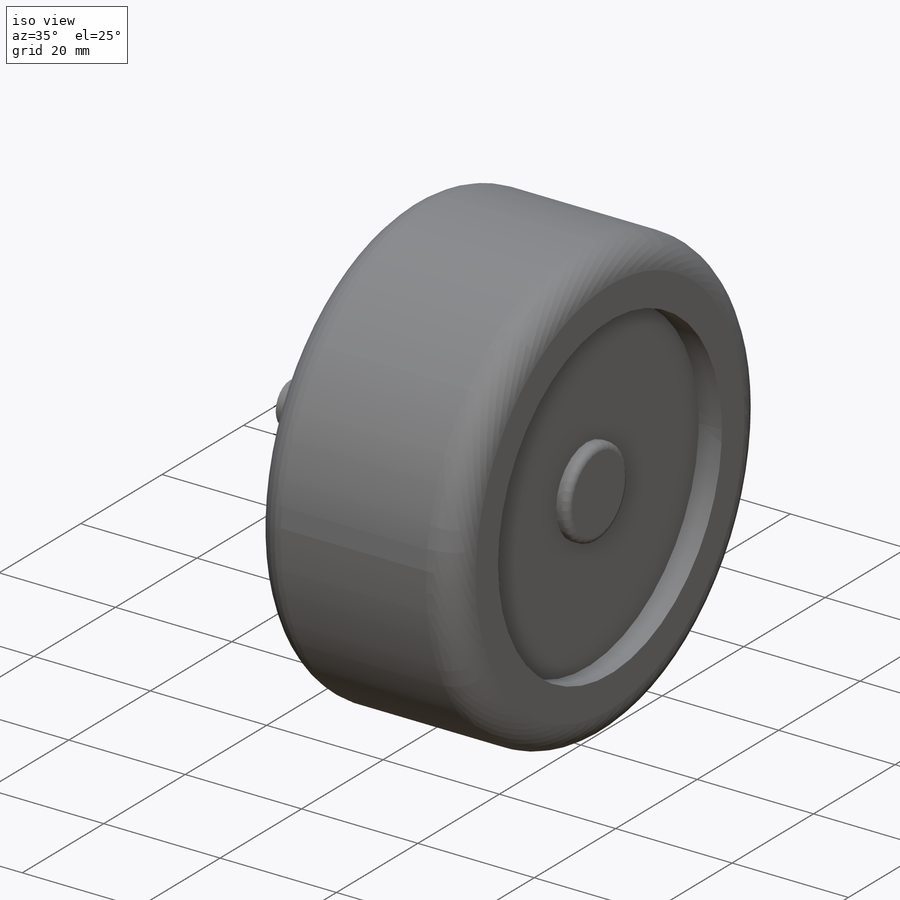
[diagram: iso view]
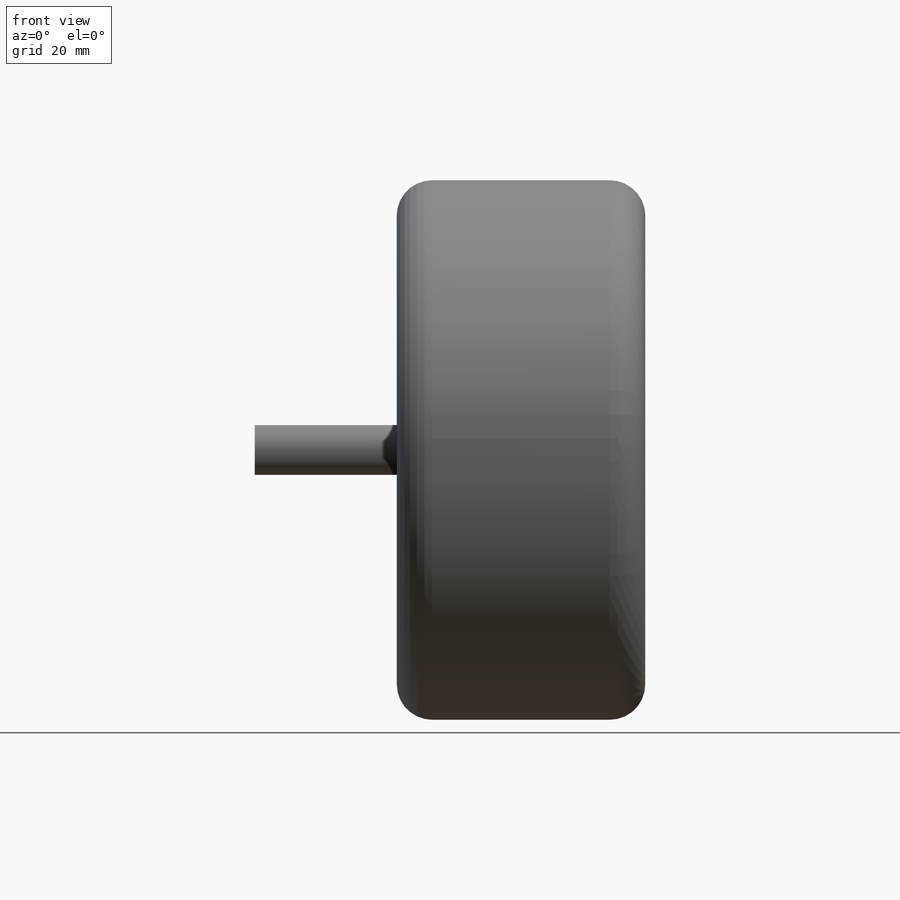
[diagram: front view]
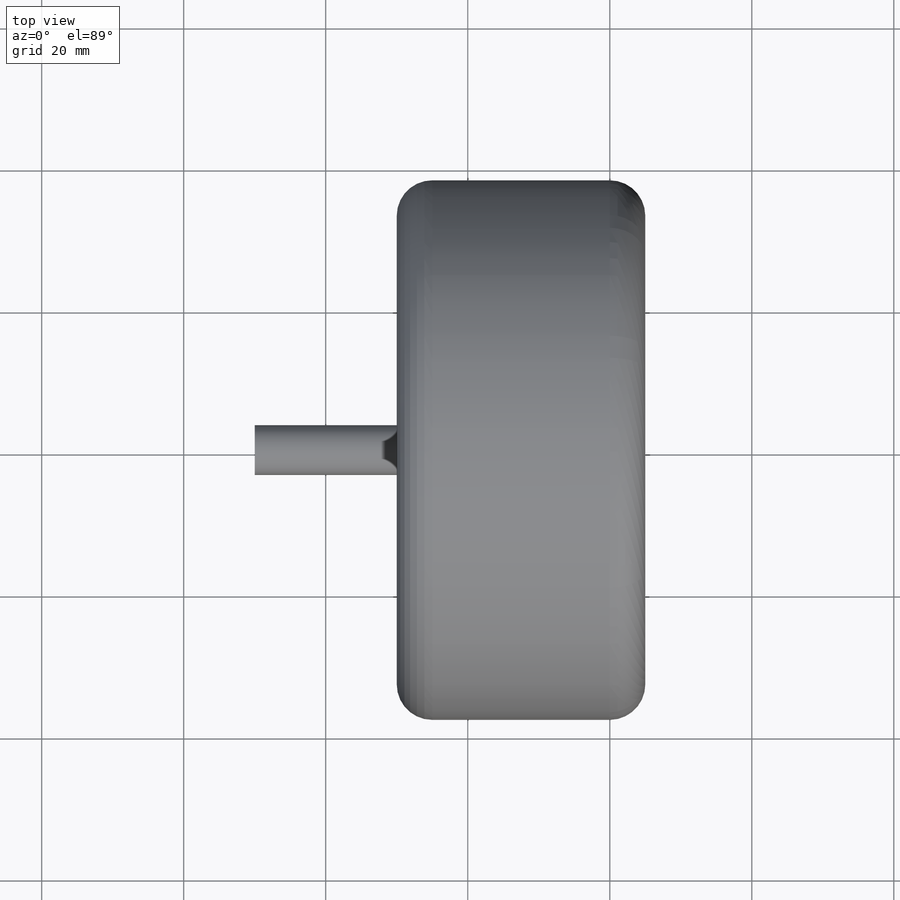
[diagram: top view]
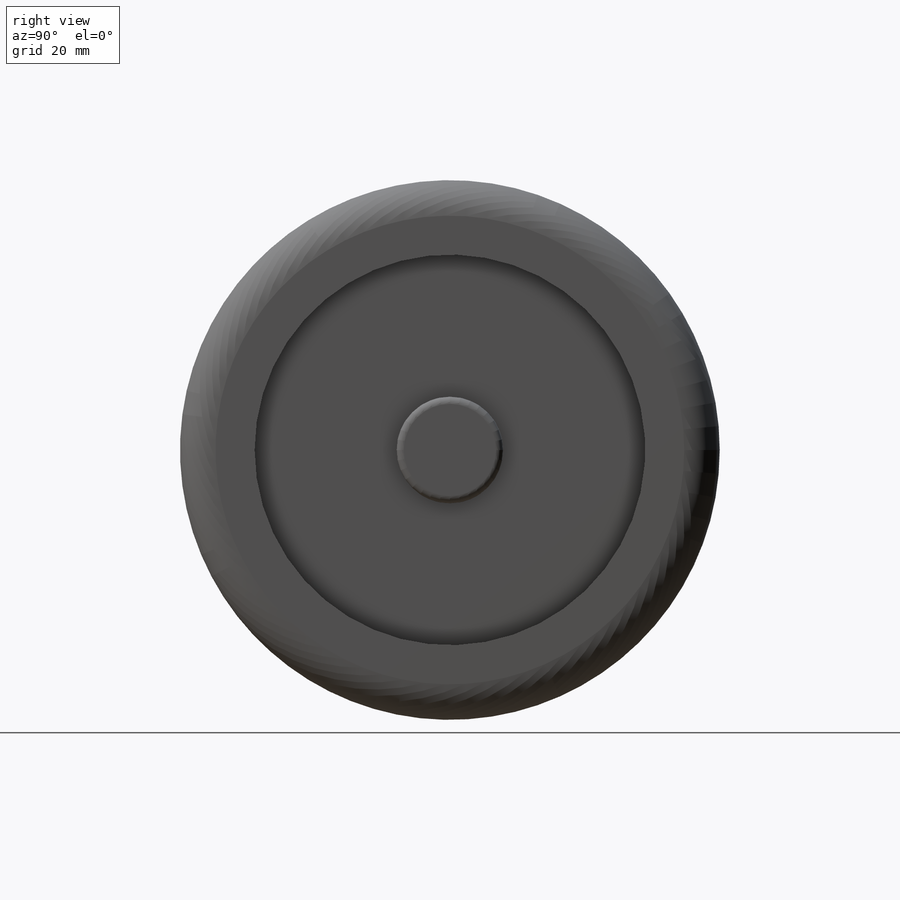
[diagram: right view]
SOLIDWORKS PART (.sldprt)
format: sldprt  version: not decoded by parser v0  size: 207,872 bytes
history: native  units: mm
features: sketch x4, extrude x4, fillet x2, material x1 (+12 scaffold rows collapsed)
feature tree (23):
  scaffold x12  (default folders/planes/origin — collapsed)
  material  "Material <not specified>"
  sketch  "Sketch1"  dims[D1=76.0mm D2=7.0mm D3=15.0mm D4=55.0mm]
  extrude  "Boss-Extrude1"  Depth=30mm
  extrude  "Boss-Extrude2"  [1 undecoded]
  sketch  "Sketch1<3>"  dims[D1=7.0mm D2=3.0mm]
  extrude  "Boss-Extrude3"  [1 undecoded]
  sketch  "Sketch1<4>"  dims[D1=50.0mm]
  extrude  "Boss-Extrude4"  [1 undecoded]
  sketch  "Sketch1<5>"  dims[D1=2.0mm]
  fillet  "Fillet1"  Radius=5mm
  fillet  "Fillet2"  Radius=1mm
decode coverage: 7 of 10 modeling features carry decoded parameters
note: 3 parameter values undecoded
summary: no parameter record found for 3 features
note: suppression state not decoded; provenance and decode notes live in map.json
